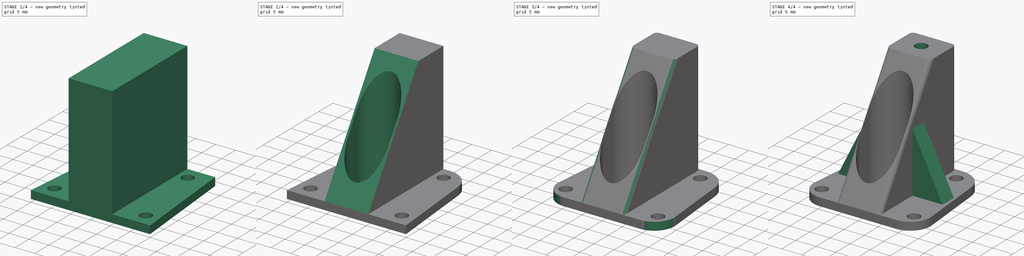
[diagram: build sequence overview — one tinted view per stage of 4, left to right]
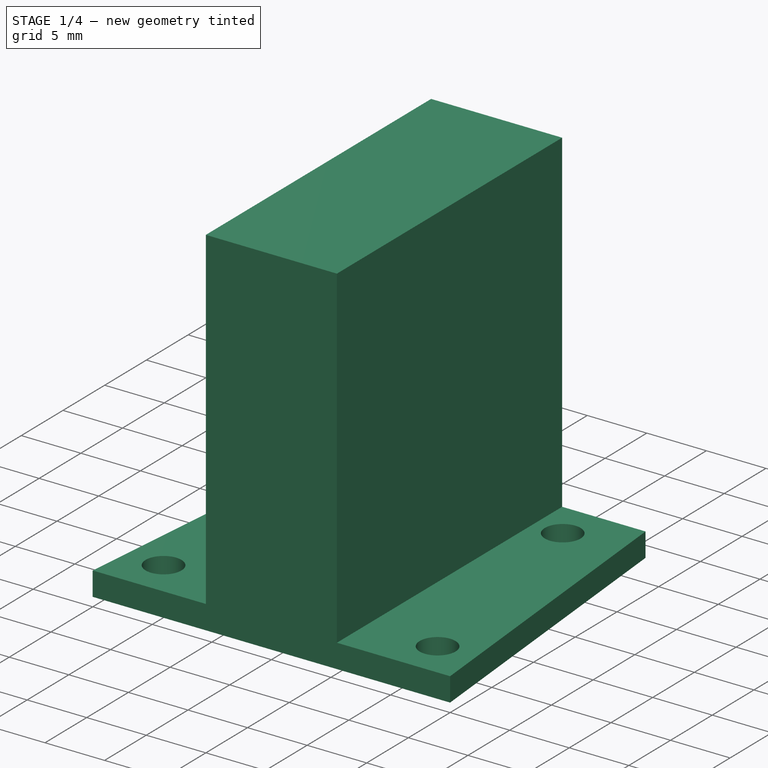
[diagram: stage 1 of 4 — iso view after this stage's code; geometry added in this stage tinted green]
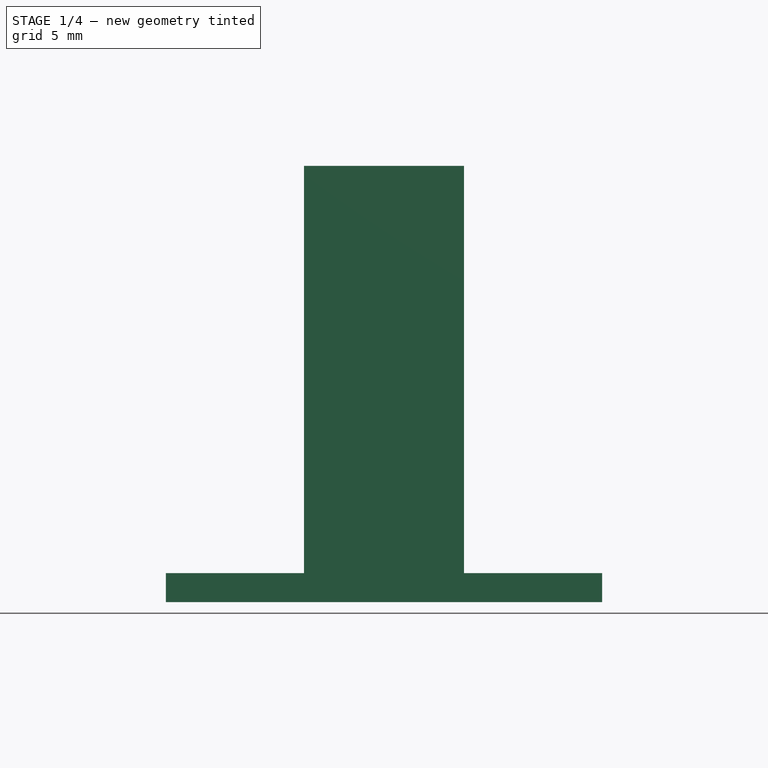
[diagram: stage 1 of 4 — front view after this stage's code; geometry added in this stage tinted green]
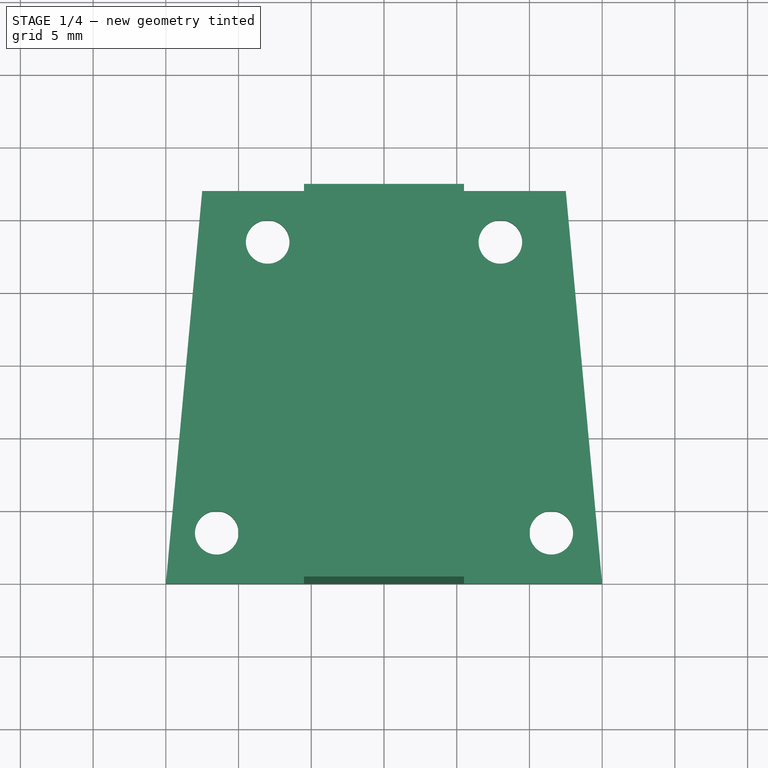
[diagram: stage 1 of 4 — top view after this stage's code; geometry added in this stage tinted green]
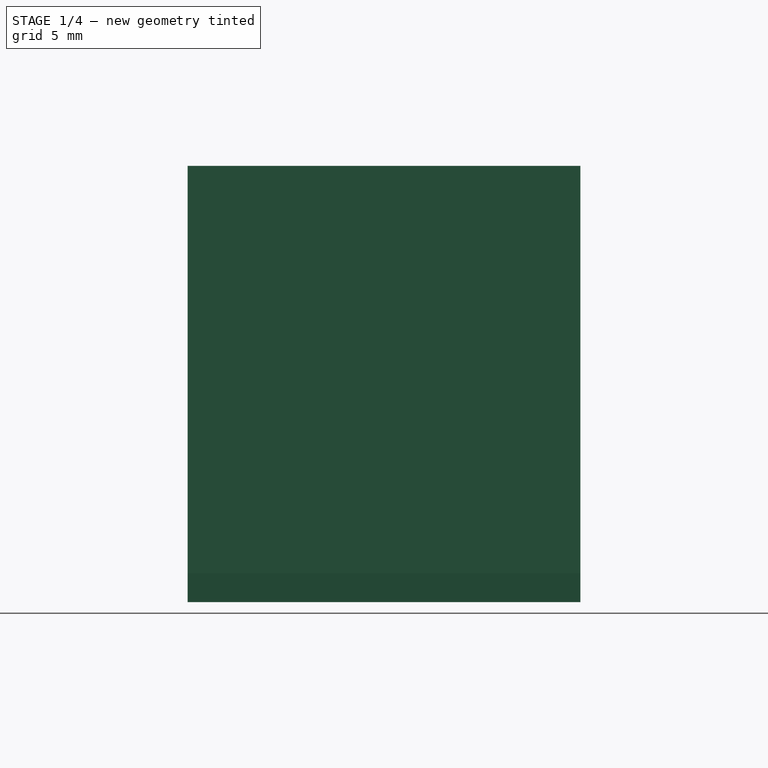
[diagram: stage 1 of 4 — right view after this stage's code; geometry added in this stage tinted green]
FCSTD DOCUMENT  (FreeCAD 0.17R13541 (Git))
Label: 450 Drone Mount Column A
License: All rights reserved
LicenseURL: http://en.wikipedia.org/wiki/All_rights_reserved
objects: Sketcher::SketchObject×8, PartDesign::Pocket×5, PartDesign::Pad×3, PartDesign::Fillet×3, PartDesign::Body×1
note: 28 computed .brp shape members not serialized (recipe doc carries the construction recipe); baked Part::Feature solids carry a one-line shape summary decoded from their .brp

FEATURE [Sketcher::SketchObject] Sketch  label="PlatformSketch"
  MapMode = 5
  Support = -> [XY_Plane]
  sketch-geometry (4):
    g0: LineSegment StartX=0 StartY=0 StartZ=0 EndX=30 EndY=0 EndZ=0
    g1: LineSegment StartX=30 StartY=0 StartZ=0 EndX=30 EndY=27 EndZ=0
    g2: LineSegment StartX=30 StartY=27 StartZ=0 EndX=0 EndY=27 EndZ=0
    g3: LineSegment StartX=0 StartY=27 StartZ=0 EndX=0 EndY=0 EndZ=0
  constraints (11):
    c: Coincident(g0,g1)
    c: Coincident(g1,g2)
    c: Coincident(g2,g3)
    c: Coincident(g3,g0)
    c: Horizontal(g0)
    c: Horizontal(g2)
    c: Vertical(g1)
    c: Vertical(g3)
    c: DistanceX(g0,g0) = 30
    c: DistanceY(g3,g3) = 27
    c: Coincident(g0,g-1)
FEATURE [PartDesign::Pad] Pad  label="PlatformPad"
  Length = 2
  Length2 = 100
  Profile = -> Sketch
  Type = 0
FEATURE [Sketcher::SketchObject] Sketch001  label="Holes"
  MapMode = 5
  Placement = pos=(0,0,2) rot=(0,0,1;0rad)
  Support = -> [Pad]
  sketch-geometry (14):
    g0: LineSegment StartX=0 StartY=0 StartZ=0 EndX=0 EndY=27 EndZ=0
    g1: LineSegment StartX=30 StartY=0 StartZ=0 EndX=30 EndY=27 EndZ=0
    g2: LineSegment StartX=0 StartY=27 StartZ=0 EndX=2.5 EndY=27 EndZ=0
    g3: LineSegment StartX=27.5 StartY=27 StartZ=0 EndX=30 EndY=27 EndZ=0
    g4: LineSegment StartX=2.5 StartY=27 StartZ=0 EndX=0 EndY=0 EndZ=0
    g5: LineSegment StartX=27.5 StartY=27 StartZ=0 EndX=30 EndY=0 EndZ=0
    g6: Circle CenterX=3.5 CenterY=3.5 CenterZ=0 NormalX=0 NormalY=0 NormalZ=1 AngleXU=0 Radius=1.5
    g7: Circle CenterX=26.5 CenterY=3.5 CenterZ=0 NormalX=0 NormalY=0 NormalZ=1 AngleXU=0 Radius=1.5
    g8: Circle CenterX=23 CenterY=23.5 CenterZ=0 NormalX=0 NormalY=0 NormalZ=1 AngleXU=0 Radius=1.5
    g9: Circle CenterX=7 CenterY=23.5 CenterZ=0 NormalX=0 NormalY=0 NormalZ=1 AngleXU=0 Radius=1.5
    g10: ArcOfCircle CenterX=15 CenterY=8 CenterZ=0 NormalX=0 NormalY=0 NormalZ=1 AngleXU=0 Radius=5 StartAngle=3.14159 EndAngle=6.28319
    g11: ArcOfCircle CenterX=15 CenterY=11 CenterZ=0 NormalX=0 NormalY=0 NormalZ=1 AngleXU=0 Radius=5 StartAngle=0 EndAngle=3.14159
    g12: LineSegment StartX=20 StartY=8 StartZ=0 EndX=20 EndY=11 EndZ=0
    g13: LineSegment StartX=10 StartY=8 StartZ=0 EndX=10 EndY=11 EndZ=0
  constraints (42):
    c: Vertical(g0)
    c: DistanceY(g-1,g0) = 0
    c: DistanceX(g-2,g0) = 0
    c: DistanceY(g0,g0) = 27
    c: Vertical(g1)
    c: DistanceY(g-1,g1) = 0
    c: DistanceX(g-2,g1) = 30
    c: Equal(g1,g0)
    c: DistanceX(g0,g2) = 0
    c: DistanceY(g2,g0) = 0
    c: Horizontal(g2)
    c: DistanceX(g2,g2) = 2.5
    c: Equal(g3,g2)
    c: Horizontal(g3)
    c: DistanceX(g3,g1) = 0
    c: DistanceY(g3,g1) = 0
    c: Coincident(g4,g2)
    c: Coincident(g4,g-1)
    c: Coincident(g5,g3)
    c: Coincident(g5,g1)
    c: Radius(g6) = 1.5
    c: Equal(g7,g8)
    c: Equal(g8,g9)
    c: Equal(g9,g6)
    c: DistanceX(g-1,g6) = 3.5
    c: DistanceY(g-1,g6) = 3.5
    c: DistanceY(g6,g7) = 0
    c: DistanceX(g6,g7) = 23
    c: DistanceY(g6,g9) = 20
    c: DistanceY(g6,g8) = 20
    c: DistanceX(g6,g9) = 3.5
    c: DistanceX(g9,g8) = 16
    c: Tangent(g10,g13) = 1.5708
    c: Tangent(g10,g12) = -1.5708
    c: Tangent(g12,g11) = -1.5708
    c: Tangent(g13,g11) = 1.5708
    c: Vertical(g12)
    c: Equal(g10,g11)
    c: Radius(g10) = 5
    c: DistanceX(g6,g10) = 11.5
    c: DistanceY(g6,g10) = 4.5
    c: DistanceY(g13,g13) = 3
FEATURE [Sketcher::SketchObject] Sketch002  label="Tower"
  MapMode = 5
  Placement = pos=(0,0,2) rot=(0,0,1;0rad)
  Support = -> [Pad]
  sketch-geometry (4):
    g0: LineSegment StartX=9.5 StartY=27 StartZ=0 EndX=20.5 EndY=27 EndZ=0
    g1: LineSegment StartX=20.5 StartY=27 StartZ=0 EndX=20.5 EndY=0 EndZ=0
    g2: LineSegment StartX=20.5 StartY=0 StartZ=0 EndX=9.5 EndY=0 EndZ=0
    g3: LineSegment StartX=9.5 StartY=0 StartZ=0 EndX=9.5 EndY=27 EndZ=0
  constraints (12):
    c: Coincident(g0,g1)
    c: Coincident(g1,g2)
    c: Coincident(g2,g3)
    c: Coincident(g3,g0)
    c: Horizontal(g0)
    c: Horizontal(g2)
    c: Vertical(g1)
    c: Vertical(g3)
    c: DistanceY(g-1,g2) = 0
    c: DistanceX(g-1,g2) = 9.5
    c: DistanceX(g2,g2) = 11
    c: DistanceY(g1,g1) = 27
FEATURE [PartDesign::Pad] Pad001  label="TowerPad"
  BaseFeature = -> Pad
  Length = 28
  Length2 = 100
  Profile = -> Sketch002
  Type = 0
FEATURE [Sketcher::SketchObject] Sketch003  label="SideCutSketch"
  MapMode = 5
  Placement = pos=(20.5,0,0) rot=(0.57735,0.57735,0.57735;2.0944rad)
  Support = -> [Pad001]
  sketch-geometry (3):
    g0: LineSegment StartX=0 StartY=30 StartZ=0 EndX=18 EndY=30 EndZ=0
    g1: LineSegment StartX=18 StartY=30 StartZ=0 EndX=0 EndY=2 EndZ=0
    g2: LineSegment StartX=0 StartY=2 StartZ=0 EndX=0 EndY=30 EndZ=0
  constraints (12):
    c: Horizontal(g0)
    c: DistanceX(g0,g0) = 18
    c: DistanceX(g0,g-1) = 0
    c: DistanceY(g-1,g0) = 30
    c: Vertical(g2)
    c: DistanceY(g-1,g2) = 2
    c: DistanceX(g-1,g2) = 0
    c: DistanceX(g-1,g1) = 0
    c: DistanceY(g-1,g1) = 2
    c: DistanceY(g-1,g1) = 30
    c: DistanceX(g-1,g1) = 18
    c: DistanceY(g2,g2) = 28
FEATURE [PartDesign::Pocket] Pocket001  label="BottomHoles"
  BaseFeature = -> Pad001
  Length = 5
  Length2 = 100
  Profile = -> Sketch001
  Type = 1
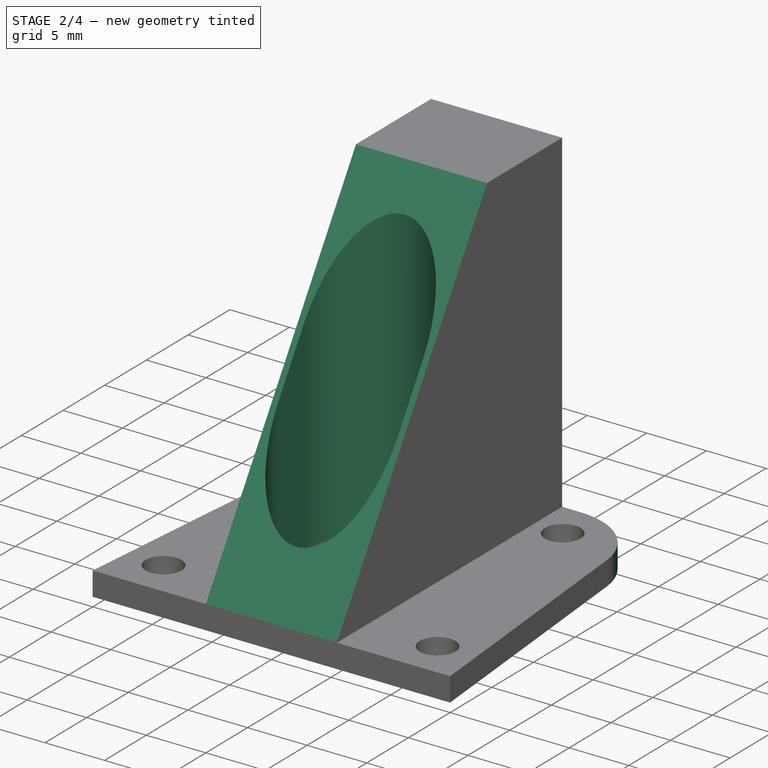
[diagram: stage 2 of 4 — iso view after this stage's code; geometry added in this stage tinted green]
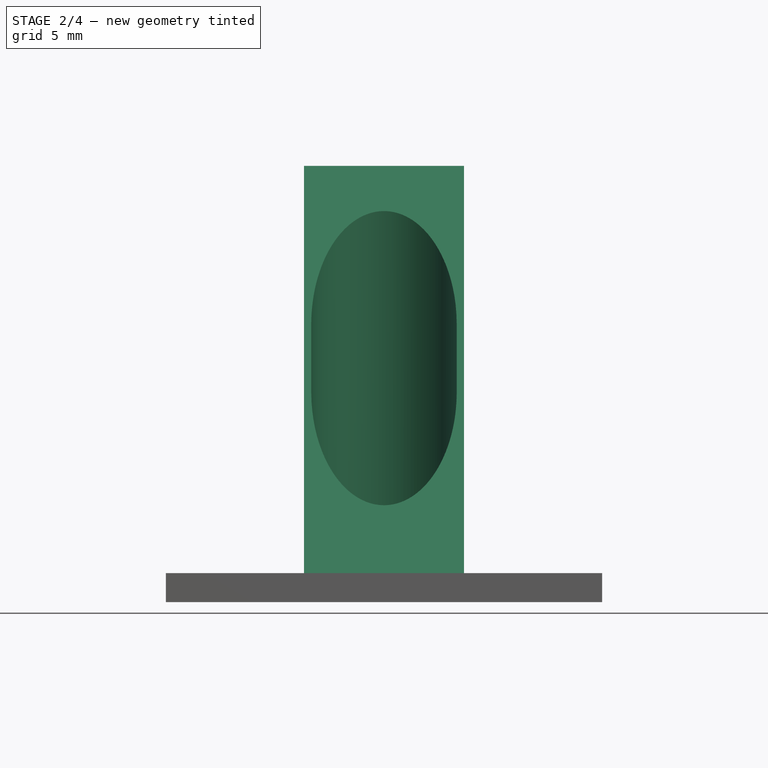
[diagram: stage 2 of 4 — front view after this stage's code; geometry added in this stage tinted green]
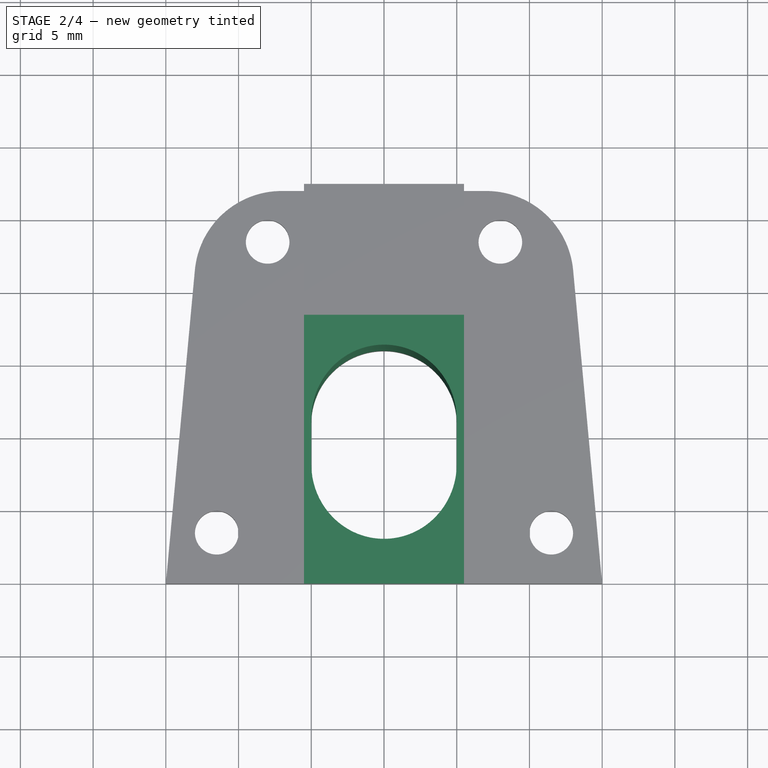
[diagram: stage 2 of 4 — top view after this stage's code; geometry added in this stage tinted green]
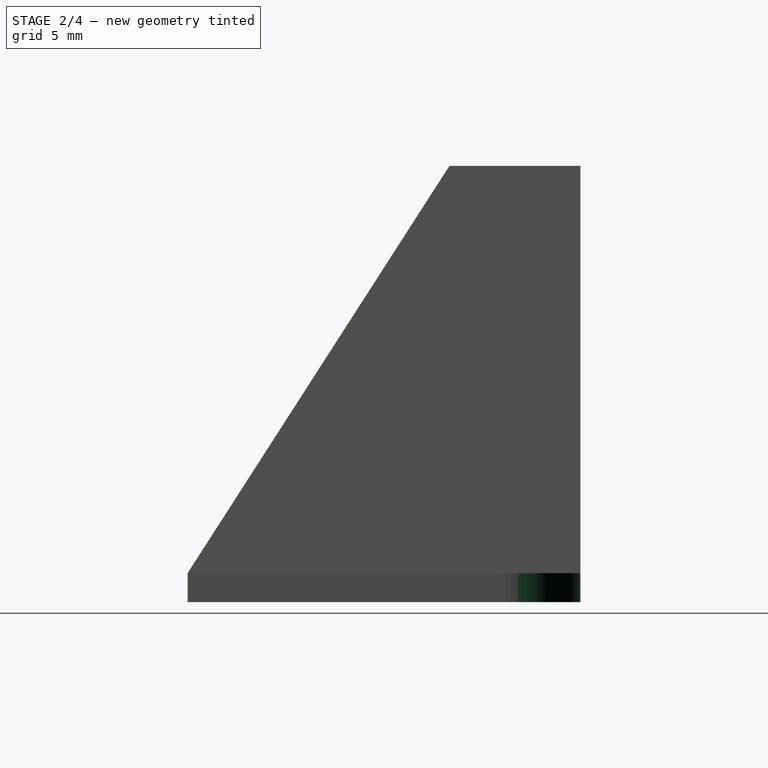
[diagram: stage 2 of 4 — right view after this stage's code; geometry added in this stage tinted green]
FEATURE [PartDesign::Pocket] Pocket  label="TowerSideCut"
  BaseFeature = -> Pocket001
  Length = 5
  Length2 = 100
  Profile = -> Sketch003
  Type = 1
FEATURE [Sketcher::SketchObject] Sketch004  label="TowerHole"
  MapMode = 5
  Placement = pos=(0,0,2) rot=(1,0,0;3.14159rad)
  Support = -> [Pocket]
  sketch-geometry (4):
    g0: ArcOfCircle CenterX=15 CenterY=-11 CenterZ=0 NormalX=0 NormalY=0 NormalZ=1 AngleXU=0 Radius=5 StartAngle=3.14159 EndAngle=6.28319
    g1: ArcOfCircle CenterX=15 CenterY=-8 CenterZ=0 NormalX=0 NormalY=0 NormalZ=1 AngleXU=0 Radius=5 StartAngle=0 EndAngle=3.14159
    g2: LineSegment StartX=20 StartY=-11 StartZ=0 EndX=20 EndY=-8 EndZ=0
    g3: LineSegment StartX=10 StartY=-11 StartZ=0 EndX=10 EndY=-8 EndZ=0
  constraints (10):
    c: Tangent(g0,g3) = 1.5708
    c: Tangent(g0,g2) = -1.5708
    c: Tangent(g2,g1) = -1.5708
    c: Tangent(g3,g1) = 1.5708
    c: Vertical(g2)
    c: Equal(g0,g1)
    c: Radius(g0) = 5
    c: DistanceY(g2,g2) = 3
    c: DistanceX(g-1,g1) = 15
    c: DistanceY(g1,g-1) = 8
FEATURE [PartDesign::Pocket] Pocket002  label="TowerPassHole"
  BaseFeature = -> Pocket
  Length = 5
  Length2 = 100
  Profile = -> Sketch004
  Type = 1
FEATURE [Sketcher::SketchObject] Sketch005  label="TopScrewHole"
  MapMode = 5
  Placement = pos=(0,0,30) rot=(0,0,1;0rad)
  Support = -> [Pocket002]
  sketch-geometry (2):
    g0: GeomPoint X=9.5 Y=18 Z=0
    g1: Circle CenterX=15 CenterY=22.5 CenterZ=0 NormalX=0 NormalY=0 NormalZ=1 AngleXU=0 Radius=1.5
  constraints (5):
    c: DistanceX(g-1,g0) = 9.5
    c: DistanceY(g-1,g0) = 18
    c: DistanceX(g0,g1) = 5.5
    c: DistanceY(g0,g1) = 4.5
    c: Radius(g1) = 1.5
FEATURE [PartDesign::Fillet] Fillet  label="BaseFillet1"
  Base = -> Pocket002 [Edge25,Edge9]
  BaseFeature = -> Pocket002
  Radius = 6
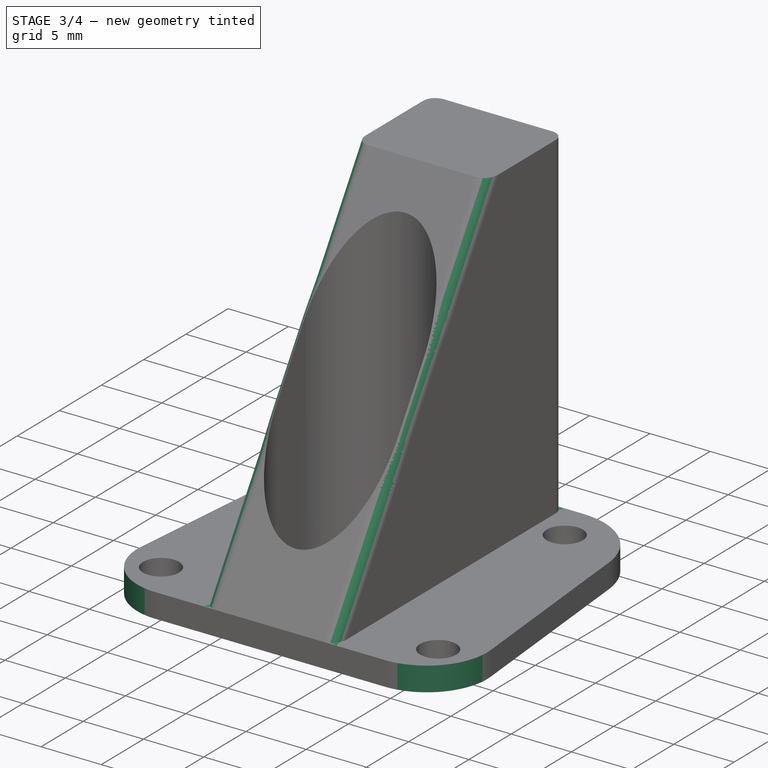
[diagram: stage 3 of 4 — iso view after this stage's code; geometry added in this stage tinted green]
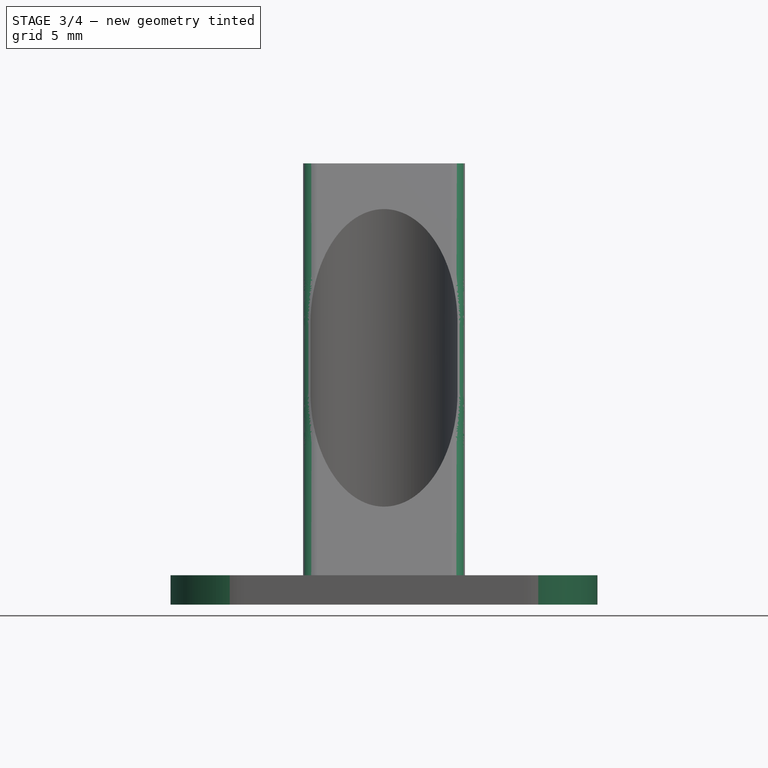
[diagram: stage 3 of 4 — front view after this stage's code; geometry added in this stage tinted green]
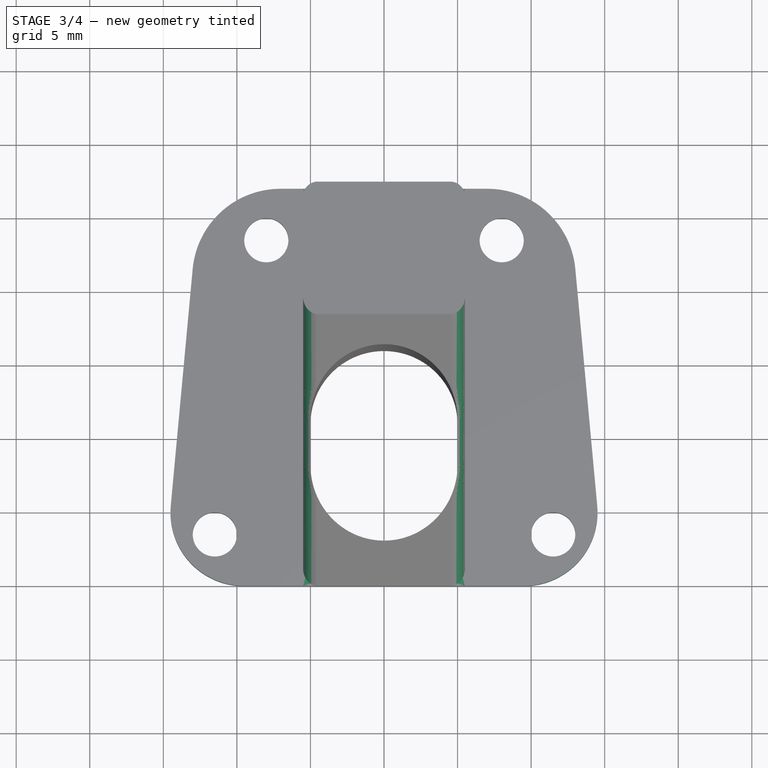
[diagram: stage 3 of 4 — top view after this stage's code; geometry added in this stage tinted green]
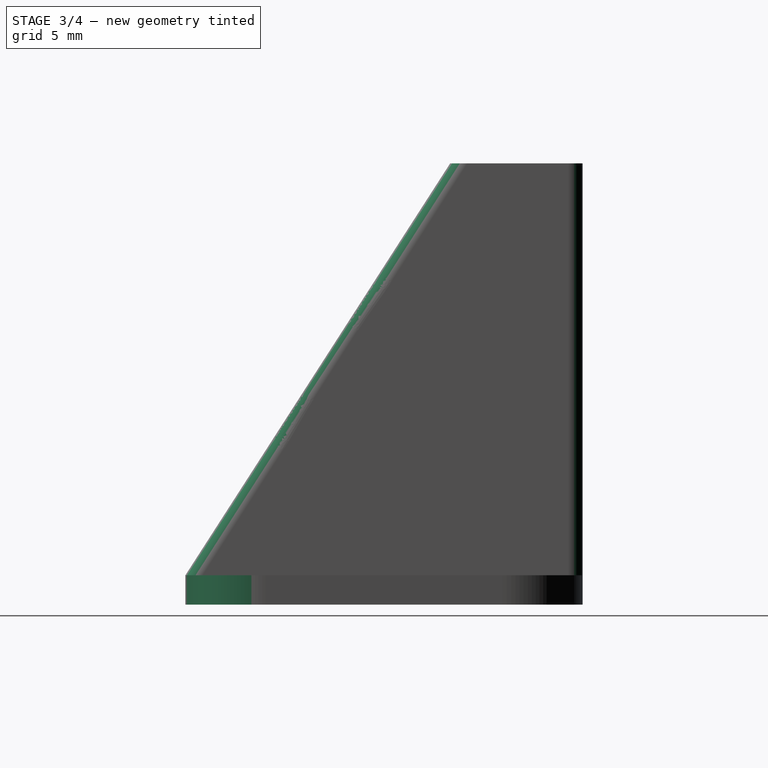
[diagram: stage 3 of 4 — right view after this stage's code; geometry added in this stage tinted green]
FEATURE [PartDesign::Fillet] Fillet001  label="BaseFillet2"
  Base = -> Fillet [Edge14,Edge3]
  BaseFeature = -> Fillet
  Radius = 5
FEATURE [PartDesign::Fillet] Fillet002  label="TowerFillet"
  Base = -> Fillet001 [Edge65,Edge35,Edge58,Edge37]
  BaseFeature = -> Fillet001
  Radius = 1
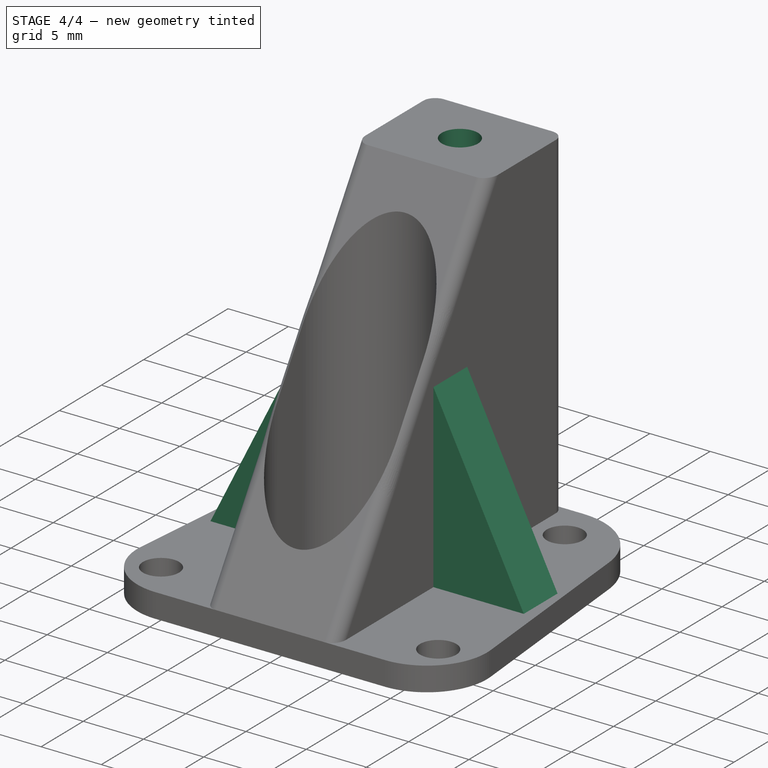
[diagram: stage 4 of 4 — iso view after this stage's code; geometry added in this stage tinted green]
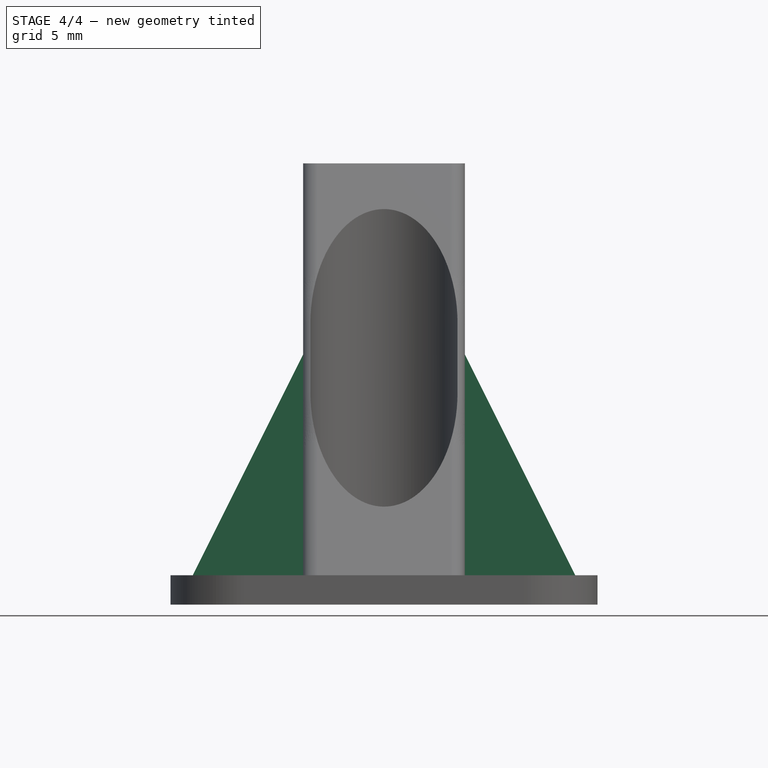
[diagram: stage 4 of 4 — front view after this stage's code; geometry added in this stage tinted green]
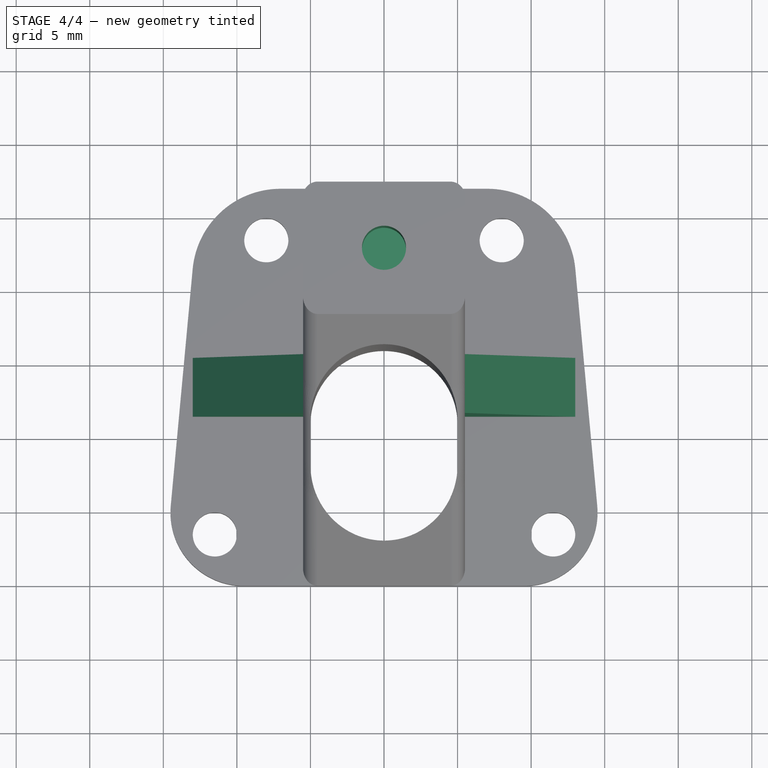
[diagram: stage 4 of 4 — top view after this stage's code; geometry added in this stage tinted green]
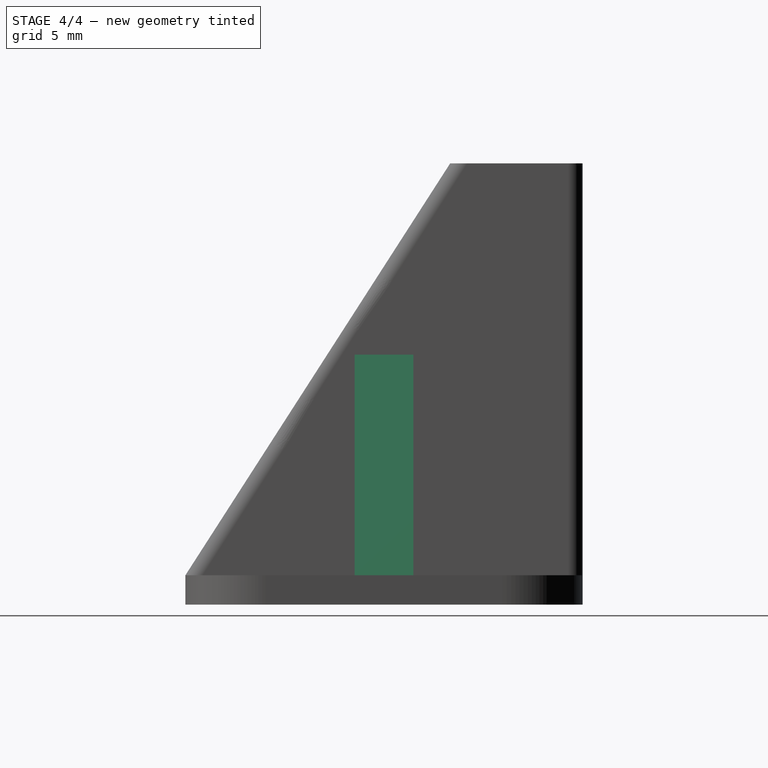
[diagram: stage 4 of 4 — right view after this stage's code; geometry added in this stage tinted green]
FEATURE [PartDesign::Pocket] Pocket003  label="TopScrewHolePocket"
  BaseFeature = -> Fillet002
  Length = 8
  Length2 = 100
  Profile = -> Sketch005
  Type = 0
FEATURE [Sketcher::SketchObject] Sketch006  label="SideStructure"
  MapMode = 5
  Placement = pos=(0,0,2) rot=(0,0,1;0rad)
  Support = -> [Pocket003]
  sketch-geometry (8):
    g0: LineSegment StartX=2 StartY=11.5 StartZ=0 EndX=9.5 EndY=11.5 EndZ=0
    g1: LineSegment StartX=9.5 StartY=11.5 StartZ=0 EndX=9.5 EndY=15.5 EndZ=0
    g2: LineSegment StartX=9.5 StartY=15.5 StartZ=0 EndX=2 EndY=15.5 EndZ=0
    g3: LineSegment StartX=2 StartY=15.5 StartZ=0 EndX=2 EndY=11.5 EndZ=0
    g4: LineSegment StartX=20.5 StartY=11.5 StartZ=0 EndX=28 EndY=11.5 EndZ=0
    g5: LineSegment StartX=28 StartY=11.5 StartZ=0 EndX=28 EndY=15.5 EndZ=0
    g6: LineSegment StartX=28 StartY=15.5 StartZ=0 EndX=20.5 EndY=15.5 EndZ=0
    g7: LineSegment StartX=20.5 StartY=15.5 StartZ=0 EndX=20.5 EndY=11.5 EndZ=0
  constraints (24):
    c: Coincident(g0,g1)
    c: Coincident(g1,g2)
    c: Coincident(g2,g3)
    c: Coincident(g3,g0)
    c: Horizontal(g0)
    c: Horizontal(g2)
    c: Vertical(g1)
    c: Vertical(g3)
    c: Coincident(g4,g5)
    c: Coincident(g5,g6)
    c: Coincident(g6,g7)
    c: Coincident(g7,g4)
    c: Horizontal(g4)
    c: Horizontal(g6)
    c: Vertical(g5)
    c: Vertical(g7)
    c: DistanceY(g-1,g0) = 11.5
    c: DistanceY(g-1,g4) = 11.5
    c: DistanceX(g-1,g0) = 2
    c: DistanceY(g3,g3) = 4
    c: DistanceX(g2,g2) = 7.5
    c: Equal(g7,g3)
    c: Equal(g6,g2)
    c: DistanceX(g0,g4) = 11
FEATURE [PartDesign::Pad] Pad002  label="SideStructurePad"
  BaseFeature = -> Pocket003
  Length = 15
  Length2 = 100
  Profile = -> Sketch006
  Type = 0
FEATURE [Sketcher::SketchObject] Sketch007  label="SideStructCutSketch"
  MapMode = 5
  Placement = pos=(0,11.5,0) rot=(1,0,0;1.5708rad)
  Support = -> [Pad002]
  sketch-geometry (6):
    g0: LineSegment StartX=2 StartY=2 StartZ=0 EndX=9.5 EndY=17 EndZ=0
    g1: LineSegment StartX=20.5 StartY=17 StartZ=0 EndX=28 EndY=2 EndZ=0
    g2: LineSegment StartX=2 StartY=2 StartZ=0 EndX=2 EndY=17 EndZ=0
    g3: LineSegment StartX=28 StartY=2 StartZ=0 EndX=28 EndY=17 EndZ=0
    g4: LineSegment StartX=20.5 StartY=17 StartZ=0 EndX=28 EndY=17 EndZ=0
    g5: LineSegment StartX=2 StartY=17 StartZ=0 EndX=9.5 EndY=17 EndZ=0
  constraints (20):
    c: DistanceY(g-1,g0) = 2
    c: DistanceX(g-1,g0) = 9.5
    c: DistanceY(g-1,g0) = 17
    c: DistanceX(g0,g1) = 11
    c: DistanceY(g1,g0) = 0
    c: DistanceX(g0,g1) = 26
    c: DistanceY(g0,g1) = 0
    c: Vertical(g2)
    c: Vertical(g3)
    c: Horizontal(g4)
    c: Horizontal(g5)
    c: DistanceY(g-1,g2) = 2
    c: DistanceX(g-1,g2) = 2
    c: DistanceY(g-1,g2) = 17
    c: Coincident(g5,g0)
    c: Coincident(g5,g2)
    c: Coincident(g4,g1)
    c: Coincident(g3,g1)
    c: DistanceY(g3,g2) = 0
    c: DistanceX(g2,g4) = 26
FEATURE [PartDesign::Pocket] Pocket004  label="SideStructSketch"
  BaseFeature = -> Pad002
  Length = 4
  Length2 = 100
  Profile = -> Sketch007
  Type = 0
FEATURE [PartDesign::Body] Body
  Group = -> [Sketch,Pad,Sketch001,Sketch002,Pad001,Sketch003,Pocket001,Pocket,Sketch004,Pocket002,Sketch005,Fillet,Fillet001,Fillet002,Pocket003,Sketch006,Pad002,Sketch007,Pocket004]
  Origin = -> Origin
  Tip = -> Pocket004
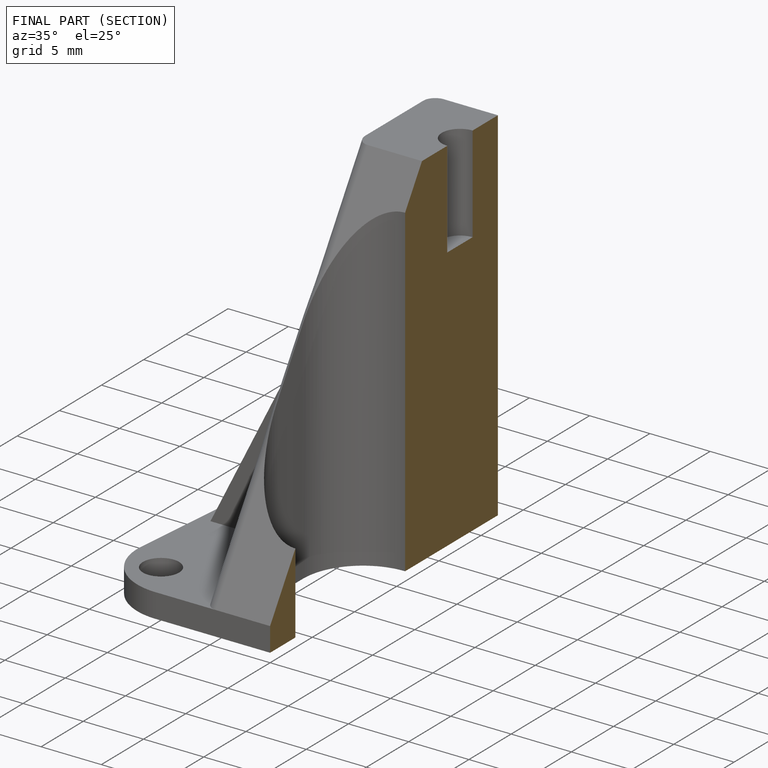
[diagram: finished part — half-section view (interior)]
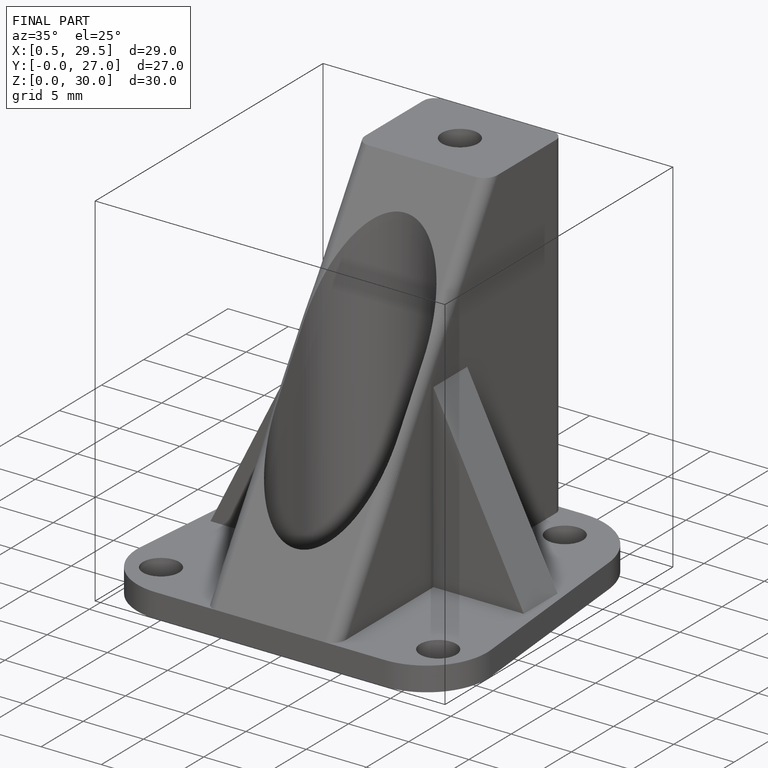
[diagram: finished part — iso view with bounding-box wireframe]
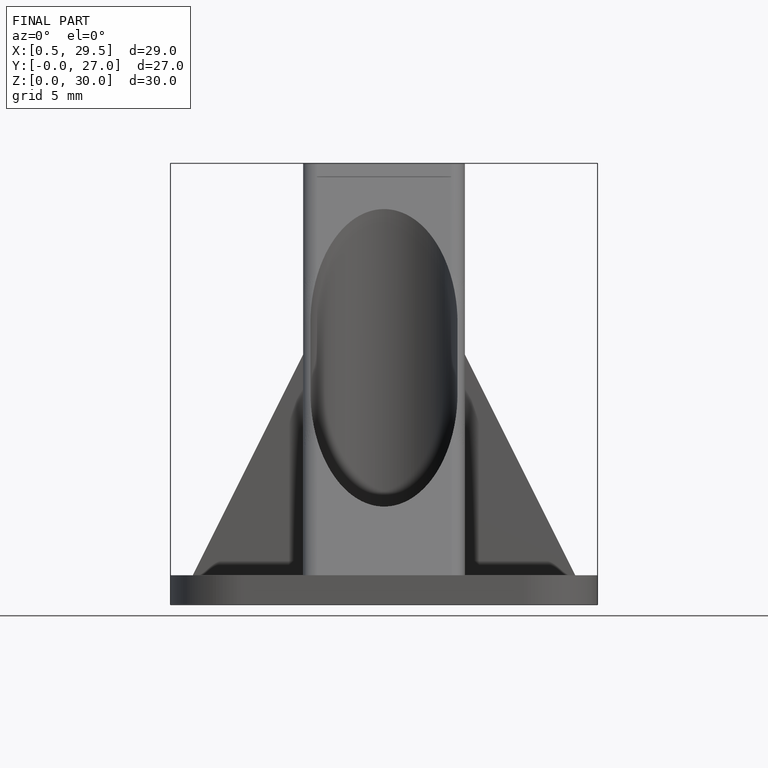
[diagram: finished part — front view with bounding-box wireframe]
